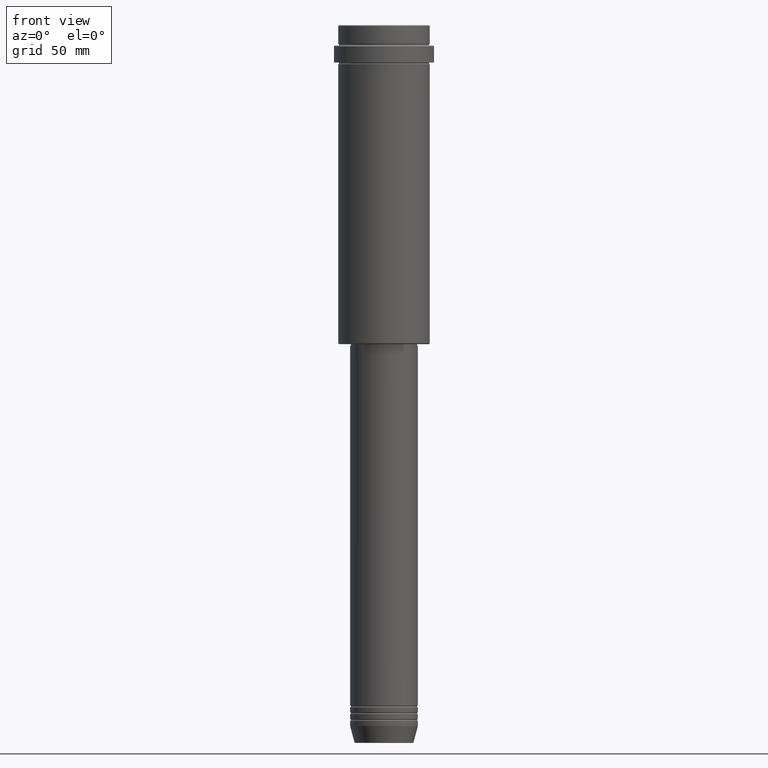
[diagram: clean part render]
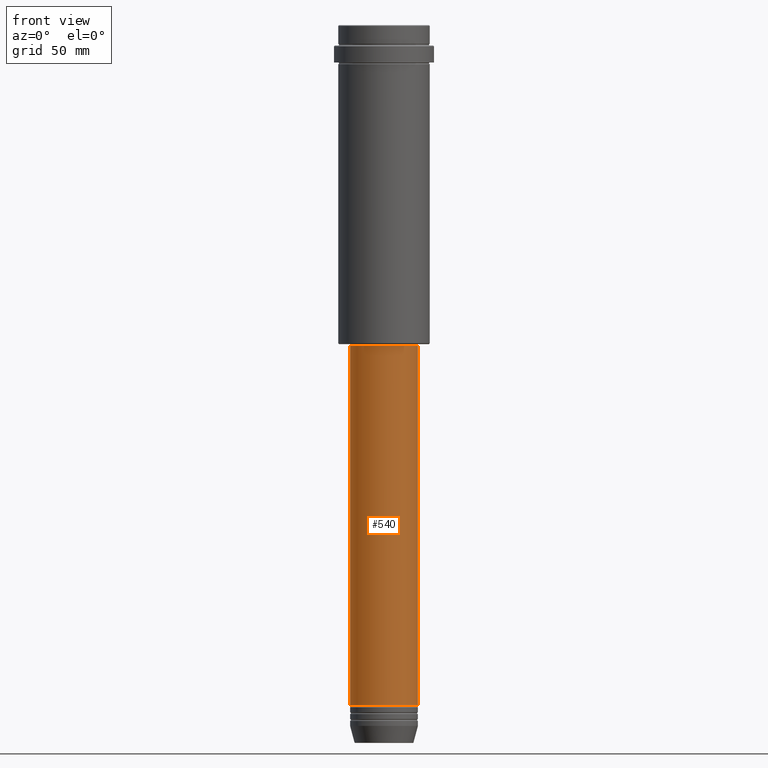
[diagram: same view with one face highlighted and labeled with its STEP entity id]
A machine part, front view. The second image highlights one B-rep face of the part: STEP entity #540.
In plain terms, the highlighted cylindrical surface (edge-blend (fillet) strip) has radius 20 mm, axis along (-0, -0, 1).
Its self-contained STEP definition (entity closure, byte-faithful):
#3 = VERTEX_POINT ( 'NONE', #507 ) ;
#11 = CIRCLE ( 'NONE', #32, 20.00000000000000000 ) ;
#32 = AXIS2_PLACEMENT_3D ( 'NONE', #1052, #42, #483 ) ;
#42 = DIRECTION ( 'NONE',  ( -0.000000000000000000, -0.000000000000000000, 1.000000000000000000 ) ) ;
#55 = AXIS2_PLACEMENT_3D ( 'NONE', #1347, #924, #389 ) ;
#97 = ORIENTED_EDGE ( 'NONE', *, *, #982, .F. ) ;
#161 = DIRECTION ( 'NONE',  ( 1.000000000000000000, 0.000000000000000000, 0.000000000000000000 ) ) ;
#385 = EDGE_CURVE ( 'NONE', #3, #904, #965, .T. ) ;
#389 = DIRECTION ( 'NONE',  ( 1.000000000000000000, 0.000000000000000000, 0.000000000000000000 ) ) ;
#419 = VERTEX_POINT ( 'NONE', #1095 ) ;
#445 = CARTESIAN_POINT ( 'NONE',  ( 20.00000000000000000, 0.000000000000000000, -188.9999999999999147 ) ) ;
#476 = CARTESIAN_POINT ( 'NONE',  ( 0.000000000000000000, 0.000000000000000000, -188.9999999999999147 ) ) ;
#483 = DIRECTION ( 'NONE',  ( 1.000000000000000000, 0.000000000000000000, 0.000000000000000000 ) ) ;
#507 = CARTESIAN_POINT ( 'NONE',  ( 20.00000000000000000, 0.000000000000000000, -400.9999999999998295 ) ) ;
#538 = ORIENTED_EDGE ( 'NONE', *, *, #1415, .F. ) ;
#540 = ADVANCED_FACE ( 'NONE', ( #1145 ), #593, .T. ) ;
#567 = CARTESIAN_POINT ( 'NONE',  ( -20.00000000000000000, 2.449293598294706513E-15, 0.000000000000000000 ) ) ;
#593 = CYLINDRICAL_SURFACE ( 'NONE', #55, 20.00000000000000000 ) ;
#657 = CARTESIAN_POINT ( 'NONE',  ( -20.00000000000000000, 2.449293598294706513E-15, -400.9999999999998295 ) ) ;
#660 = EDGE_CURVE ( 'NONE', #1246, #3, #11, .T. ) ;
#694 = VECTOR ( 'NONE', #777, 1000.000000000000000 ) ;
#695 = CIRCLE ( 'NONE', #1022, 20.00000000000000000 ) ;
#720 = VECTOR ( 'NONE', #914, 1000.000000000000000 ) ;
#777 = DIRECTION ( 'NONE',  ( -0.000000000000000000, -0.000000000000000000, 1.000000000000000000 ) ) ;
#904 = VERTEX_POINT ( 'NONE', #445 ) ;
#914 = DIRECTION ( 'NONE',  ( -0.000000000000000000, -0.000000000000000000, 1.000000000000000000 ) ) ;
#924 = DIRECTION ( 'NONE',  ( -0.000000000000000000, -0.000000000000000000, 1.000000000000000000 ) ) ;
#965 = LINE ( 'NONE', #1179, #694 ) ;
#982 = EDGE_CURVE ( 'NONE', #419, #904, #695, .T. ) ;
#1000 = ORIENTED_EDGE ( 'NONE', *, *, #385, .T. ) ;
#1022 = AXIS2_PLACEMENT_3D ( 'NONE', #476, #1032, #161 ) ;
#1032 = DIRECTION ( 'NONE',  ( -0.000000000000000000, -0.000000000000000000, 1.000000000000000000 ) ) ;
#1052 = CARTESIAN_POINT ( 'NONE',  ( 0.000000000000000000, 0.000000000000000000, -400.9999999999998295 ) ) ;
#1095 = CARTESIAN_POINT ( 'NONE',  ( -20.00000000000000000, 2.449293598294706513E-15, -188.9999999999999147 ) ) ;
#1145 = FACE_OUTER_BOUND ( 'NONE', #1330, .T. ) ;
#1162 = ORIENTED_EDGE ( 'NONE', *, *, #660, .T. ) ;
#1179 = CARTESIAN_POINT ( 'NONE',  ( 20.00000000000000000, 0.000000000000000000, 0.000000000000000000 ) ) ;
#1246 = VERTEX_POINT ( 'NONE', #657 ) ;
#1330 = EDGE_LOOP ( 'NONE', ( #538, #1162, #1000, #97 ) ) ;
#1347 = CARTESIAN_POINT ( 'NONE',  ( 0.000000000000000000, 0.000000000000000000, 0.000000000000000000 ) ) ;
#1369 = LINE ( 'NONE', #567, #720 ) ;
#1415 = EDGE_CURVE ( 'NONE', #1246, #419, #1369, .T. ) ;